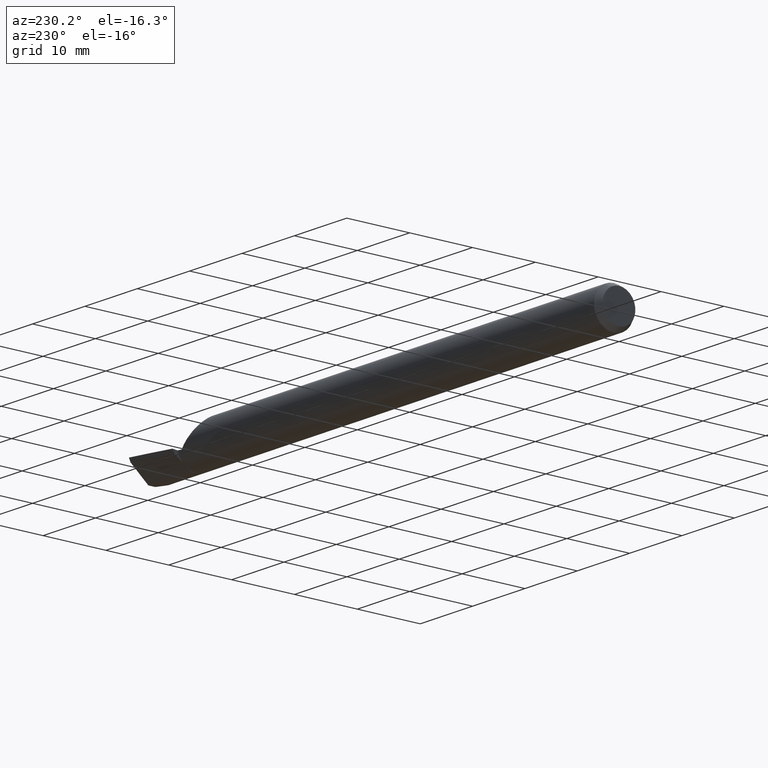
[diagram: clean part render]
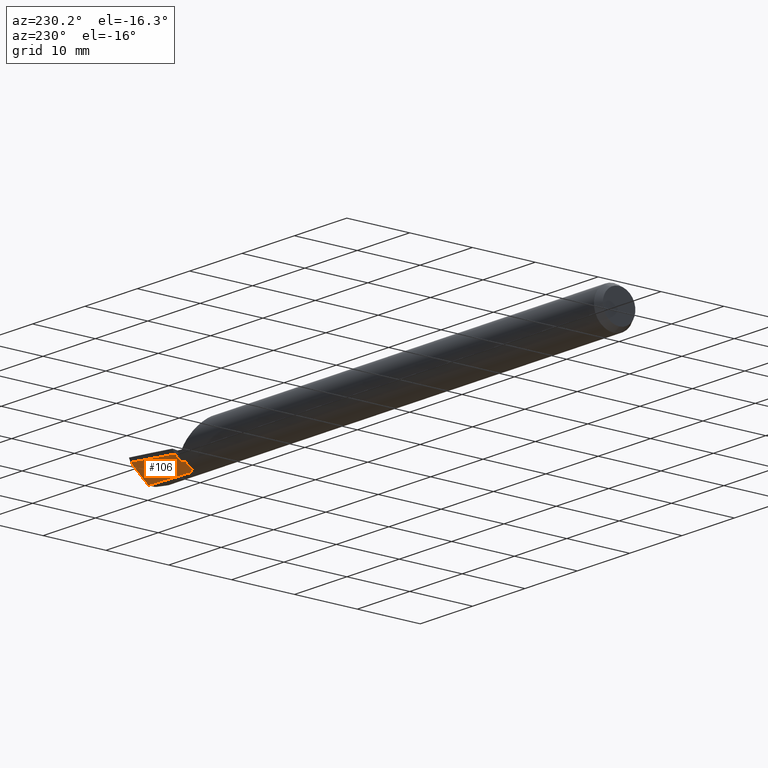
[diagram: same view with one face highlighted and labeled with its STEP entity id]
A machine part, auxiliary view. The second image highlights one B-rep face of the part: STEP entity #106.
In plain terms, the highlighted face is a freeform B-spline surface patch.
Its self-contained STEP definition (entity closure, byte-faithful):
#2 = ORIENTED_EDGE ( 'NONE', *, *, #626, .F. ) ;
#3 = CARTESIAN_POINT ( 'NONE',  ( 3.483951795194291101, 0.04617583863440933439, -0.1248999999999999971 ) ) ;
#9 = CARTESIAN_POINT ( 'NONE',  ( 3.175000000000001155, 0.09055362798966817839, -0.08602354595091822598 ) ) ;
#27 = ORIENTED_EDGE ( 'NONE', *, *, #340, .T. ) ;
#61 = CARTESIAN_POINT ( 'NONE',  ( 3.233539183390295335, 0.03388346667231119380, -0.1249000000000000526 ) ) ;
#66 = VECTOR ( 'NONE', #312, 39.37007874015748854 ) ;
#69 = CARTESIAN_POINT ( 'NONE',  ( 3.164993681968681916, 0.04158297014477048414, -0.1177773303377043640 ) ) ;
#86 = VERTEX_POINT ( 'NONE', #708 ) ;
#95 = CARTESIAN_POINT ( 'NONE',  ( 3.155000000000000249, 0.1378861526196489551, -0.05643814557168721352 ) ) ;
#106 = ADVANCED_FACE ( 'NONE', ( #682 ), #260, .T. ) ;
#110 = CARTESIAN_POINT ( 'NONE',  ( 3.410240183496790589, 0.04250226460936465389, -0.1248999999999999833 ) ) ;
#141 = CARTESIAN_POINT ( 'NONE',  ( 2.603896103896105707, -0.09875945523444670804, -0.1458616250651792734 ) ) ;
#149 = CARTESIAN_POINT ( 'NONE',  ( 2.603896103896105707, 0.1100447810938841031, -0.1004390437719276802 ) ) ;
#152 = CARTESIAN_POINT ( 'NONE',  ( 3.497062845638897688, 0.1468296269680836319, -0.02527678785434345904 ) ) ;
#156 = ORIENTED_EDGE ( 'NONE', *, *, #523, .F. ) ;
#165 = CARTESIAN_POINT ( 'NONE',  ( 3.483951795194291101, 0.04617583863440933439, -0.1248999999999999971 ) ) ;
#166 = B_SPLINE_CURVE_WITH_KNOTS ( 'NONE', 3,
 ( #570, #396, #61, #504, #275, #110, #3 ),
 .UNSPECIFIED., .F., .F.,
 ( 4, 3, 4 ),
 ( 0.0005087107713289569771, 0.002741740549851240383, 0.008365536532883317139 ),
 .UNSPECIFIED. ) ;
#170 =( BOUNDED_CURVE ( )  B_SPLINE_CURVE ( 2, ( #433, #614, #269 ),
 .UNSPECIFIED., .F., .T. ) 
 B_SPLINE_CURVE_WITH_KNOTS ( ( 3, 3 ),
 ( 0.6154841053960781183, 0.6377767502489465334 ),
 .UNSPECIFIED. ) 
 CURVE ( )  GEOMETRIC_REPRESENTATION_ITEM ( )  RATIONAL_B_SPLINE_CURVE ( ( 0.9963841304086362705, 0.9961399496440248580, 0.9959362357333968463 ) ) 
 REPRESENTATION_ITEM ( '' )  );
#191 = CARTESIAN_POINT ( 'NONE',  ( 2.827922077922078614, 0.1244857354578983305, -0.08461699288319869672 ) ) ;
#193 = CARTESIAN_POINT ( 'NONE',  ( 3.174999999999999822, 0.04233146308355638376, -0.1175076901027135440 ) ) ;
#196 = VERTEX_POINT ( 'NONE', #9 ) ;
#206 = CARTESIAN_POINT ( 'NONE',  ( 3.174999999999999822, 0.1386039659307288785, -0.05465158724221473585 ) ) ;
#231 =( BOUNDED_CURVE ( )  B_SPLINE_CURVE ( 2, ( #630, #69, #360 ),
 .UNSPECIFIED., .F., .T. ) 
 B_SPLINE_CURVE_WITH_KNOTS ( ( 3, 3 ),
 ( 0.3622232497511194693, 0.3845158946039529124 ),
 .UNSPECIFIED. ) 
 CURVE ( )  GEOMETRIC_REPRESENTATION_ITEM ( )  RATIONAL_B_SPLINE_CURVE ( ( 0.9959362357333982896, 0.9961399496440260792, 0.9963841304086371586 ) ) 
 REPRESENTATION_ITEM ( '' )  );
#259 = EDGE_CURVE ( 'NONE', #402, #381, #320, .T. ) ;
#260 =( BOUNDED_SURFACE ( )  B_SPLINE_SURFACE ( 1, 2, ( 
 ( #408, #627, #698, #191, #149 ),
 ( #378, #368, #598, #423, #141 ) ),
 .UNSPECIFIED., .F., .F., .F. ) 
 B_SPLINE_SURFACE_WITH_KNOTS ( ( 2, 2 ),
 ( 3, 2, 3 ),
 ( 0.000000000000000000, 1.000000000000000000 ),
 ( 0.000000000000000000, 0.5000000000000000000, 1.000000000000000000 ),
 .UNSPECIFIED. ) 
 GEOMETRIC_REPRESENTATION_ITEM ( )  RATIONAL_B_SPLINE_SURFACE ( (
 ( 1.000000000000000000, 0.9898214418809326842, 1.000000000000000000, 0.9898214418809326842, 1.000000000000000000),
 ( 1.000000000000000000, 0.9898214418809326842, 1.000000000000000000, 0.9898214418809326842, 1.000000000000000000) ) ) 
 REPRESENTATION_ITEM ( '' )  SURFACE ( )  );
#263 = CARTESIAN_POINT ( 'NONE',  ( 3.490411918746795905, 0.09616398972739637063, -0.07584127346721108998 ) ) ;
#269 = CARTESIAN_POINT ( 'NONE',  ( 3.175000000000001155, 0.09055362798966817839, -0.08602354595091822598 ) ) ;
#275 = CARTESIAN_POINT ( 'NONE',  ( 3.336524325424050641, 0.03891431529137907852, -0.1249000000000000526 ) ) ;
#281 =( BOUNDED_CURVE ( )  B_SPLINE_CURVE ( 1, ( #333, #206 ),
 .UNSPECIFIED., .F., .F. ) 
 B_SPLINE_CURVE_WITH_KNOTS ( ( 2, 2 ),
 ( 0.003306797769692931127, 0.004764376004941983309 ),
 .UNSPECIFIED. ) 
 CURVE ( )  GEOMETRIC_REPRESENTATION_ITEM ( )  RATIONAL_B_SPLINE_CURVE ( ( 0.9959362357333982896, 0.9959362357333982896 ) ) 
 REPRESENTATION_ITEM ( '' )  );
#295 = CARTESIAN_POINT ( 'NONE',  ( 3.154997276976144960, 0.04082568376012370159, -0.1180392882669460269 ) ) ;
#312 = DIRECTION ( 'NONE',  ( 0.000000000000000000, -0.8443279255020121887, -0.5358267949790009865 ) ) ;
#320 = LINE ( 'NONE', #95, #66 ) ;
#323 = CARTESIAN_POINT ( 'NONE',  ( 3.174999999999999822, 0.1386039659307288785, -0.05465158724221473585 ) ) ;
#324 = CARTESIAN_POINT ( 'NONE',  ( 3.488250768642132460, 0.07956946185409180528, -0.09226235331062158929 ) ) ;
#333 = CARTESIAN_POINT ( 'NONE',  ( 3.175000000000001155, 0.09055362798966817839, -0.08602354595091822598 ) ) ;
#338 = VERTEX_POINT ( 'NONE', #697 ) ;
#339 =( BOUNDED_CURVE ( )  B_SPLINE_CURVE ( 2, ( #152, #603, #323 ),
 .UNSPECIFIED., .F., .T. ) 
 B_SPLINE_CURVE_WITH_KNOTS ( ( 3, 3 ),
 ( 0.003310730438769169011, 0.3622232497511168048 ),
 .UNSPECIFIED. ) 
 CURVE ( )  GEOMETRIC_REPRESENTATION_ITEM ( )  RATIONAL_B_SPLINE_CURVE ( ( 0.9998660986834456699, 0.9926564332081680986, 0.9959362357333981786 ) ) 
 REPRESENTATION_ITEM ( '' )  );
#340 = EDGE_CURVE ( 'NONE', #86, #679, #716, .T. ) ;
#360 = CARTESIAN_POINT ( 'NONE',  ( 3.154997276976144960, 0.04082568376012370159, -0.1180392882669460269 ) ) ;
#368 = CARTESIAN_POINT ( 'NONE',  ( 3.275974025974025761, -0.02954234997833558515, -0.1754928253563373675 ) ) ;
#371 = ORIENTED_EDGE ( 'NONE', *, *, #403, .F. ) ;
#372 = CARTESIAN_POINT ( 'NONE',  ( 3.174999999999999822, 0.04233146308355638376, -0.1175076901027135440 ) ) ;
#376 = ORIENTED_EDGE ( 'NONE', *, *, #259, .F. ) ;
#377 = CARTESIAN_POINT ( 'NONE',  ( 3.483951795194291101, 0.04617583863440933439, -0.1248999999999999971 ) ) ;
#378 = CARTESIAN_POINT ( 'NONE',  ( 3.500000000000000000, -0.004222992405820782426, -0.1761000000000000065 ) ) ;
#381 = VERTEX_POINT ( 'NONE', #295 ) ;
#396 = CARTESIAN_POINT ( 'NONE',  ( 3.204269342381693697, 0.03245137317070211774, -0.1248999999999999971 ) ) ;
#398 = EDGE_CURVE ( 'NONE', #402, #196, #170, .T. ) ;
#402 = VERTEX_POINT ( 'NONE', #712 ) ;
#403 = EDGE_CURVE ( 'NONE', #497, #338, #339, .T. ) ;
#404 = EDGE_CURVE ( 'NONE', #196, #338, #281, .T. ) ;
#408 = CARTESIAN_POINT ( 'NONE',  ( 3.500000000000000000, 0.1468770075941775166, -0.02500000000000000139 ) ) ;
#421 = CARTESIAN_POINT ( 'NONE',  ( 3.174999999999998934, 0.03100915477547138907, -0.1248999999999747812 ) ) ;
#423 = CARTESIAN_POINT ( 'NONE',  ( 2.827922077922078614, -0.07778771962324079747, -0.1600610910546609311 ) ) ;
#433 = CARTESIAN_POINT ( 'NONE',  ( 3.154999092325381671, 0.08943842285833072947, -0.08718244402187172448 ) ) ;
#445 = ORIENTED_EDGE ( 'NONE', *, *, #677, .T. ) ;
#483 = EDGE_LOOP ( 'NONE', ( #156, #2, #27, #445, #376, #539, #551, #371 ) ) ;
#490 = VERTEX_POINT ( 'NONE', #377 ) ;
#494 = CARTESIAN_POINT ( 'NONE',  ( 3.494837731796898161, 0.1300137596384466354, -0.04220305967559669774 ) ) ;
#497 = VERTEX_POINT ( 'NONE', #656 ) ;
#504 = CARTESIAN_POINT ( 'NONE',  ( 3.262809132887335650, 0.03531331064882489018, -0.1249000000000000526 ) ) ;
#523 = EDGE_CURVE ( 'NONE', #490, #497, #721, .T. ) ;
#539 = ORIENTED_EDGE ( 'NONE', *, *, #398, .T. ) ;
#551 = ORIENTED_EDGE ( 'NONE', *, *, #404, .T. ) ;
#570 = CARTESIAN_POINT ( 'NONE',  ( 3.174999999999998934, 0.03100915477547138907, -0.1248999999999747812 ) ) ;
#598 = CARTESIAN_POINT ( 'NONE',  ( 3.051948051948052854, -0.05366503480078819305, -0.1677769582054991215 ) ) ;
#603 = CARTESIAN_POINT ( 'NONE',  ( 3.336667494637699516, 0.1442283193754824444, -0.04038745087259730526 ) ) ;
#604 = CARTESIAN_POINT ( 'NONE',  ( 3.486097387557156146, 0.06290620078664985182, -0.1086152769749152425 ) ) ;
#614 = CARTESIAN_POINT ( 'NONE',  ( 3.164993681968725436, 0.09000568072894396532, -0.08660034863704028918 ) ) ;
#626 = EDGE_CURVE ( 'NONE', #86, #490, #166, .T. ) ;
#627 = CARTESIAN_POINT ( 'NONE',  ( 3.275974025974025761, 0.1432825502443031418, -0.04611772557897757946 ) ) ;
#630 = CARTESIAN_POINT ( 'NONE',  ( 3.174999999999999822, 0.04233146308355638376, -0.1175076901027135440 ) ) ;
#656 = CARTESIAN_POINT ( 'NONE',  ( 3.497062845638897688, 0.1468296269680836319, -0.02527678785434345904 ) ) ;
#665 = CARTESIAN_POINT ( 'NONE',  ( 3.497062845638897688, 0.1468296269680836319, -0.02527678785434345904 ) ) ;
#677 = EDGE_CURVE ( 'NONE', #679, #381, #231, .T. ) ;
#679 = VERTEX_POINT ( 'NONE', #372 ) ;
#682 = FACE_OUTER_BOUND ( 'NONE', #483, .T. ) ;
#697 = CARTESIAN_POINT ( 'NONE',  ( 3.174999999999999822, 0.1386039659307288785, -0.05465158724221473585 ) ) ;
#698 = CARTESIAN_POINT ( 'NONE',  ( 3.051948051948052854, 0.1338841428511007292, -0.06536735923108814850 ) ) ;
#708 = CARTESIAN_POINT ( 'NONE',  ( 3.174999999999998934, 0.03100915477547138907, -0.1248999999999747812 ) ) ;
#712 = CARTESIAN_POINT ( 'NONE',  ( 3.154999092325381671, 0.08943842285833072947, -0.08718244402187172448 ) ) ;
#716 =( BOUNDED_CURVE ( )  B_SPLINE_CURVE ( 1, ( #421, #193 ),
 .UNSPECIFIED., .F., .T. ) 
 B_SPLINE_CURVE_WITH_KNOTS ( ( 2, 2 ),
 ( 0.001500551822102671237, 0.001844007266326335055 ),
 .UNSPECIFIED. ) 
 CURVE ( )  GEOMETRIC_REPRESENTATION_ITEM ( )  RATIONAL_B_SPLINE_CURVE ( ( 0.9959362357333982896, 0.9959362357333982896 ) ) 
 REPRESENTATION_ITEM ( '' )  );
#721 = B_SPLINE_CURVE_WITH_KNOTS ( 'NONE', 3,
 ( #165, #604, #324, #263, #726, #494, #665 ),
 .UNSPECIFIED., .F., .F.,
 ( 4, 3, 4 ),
 ( 3.928456268329965842E-05, 0.001825846797636991288, 0.003651824213781974457 ),
 .UNSPECIFIED. ) ;
#726 = CARTESIAN_POINT ( 'NONE',  ( 3.492620747877007048, 0.1131246240163123196, -0.05905791379711083228 ) ) ;